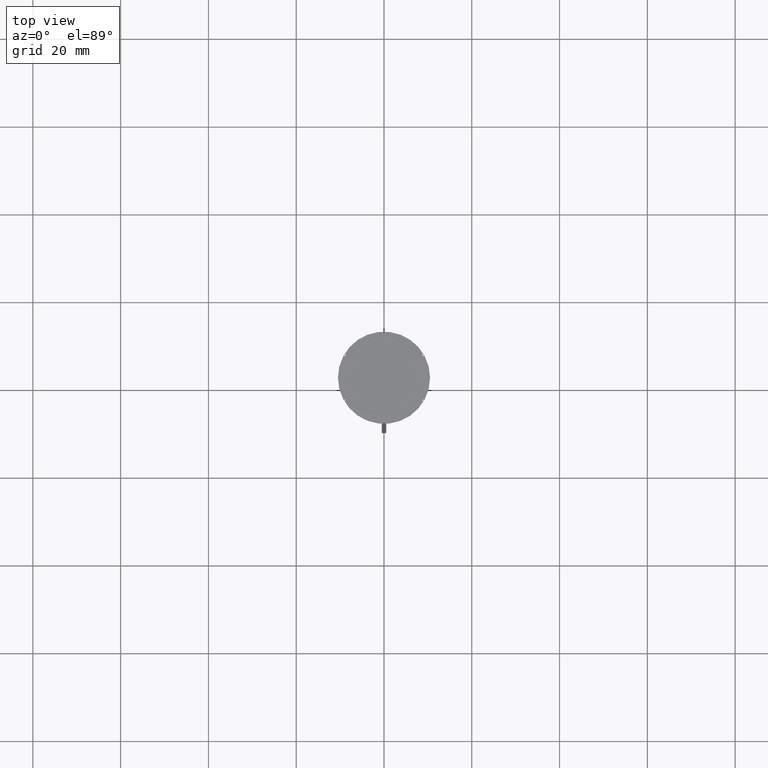
[diagram: clean part render]
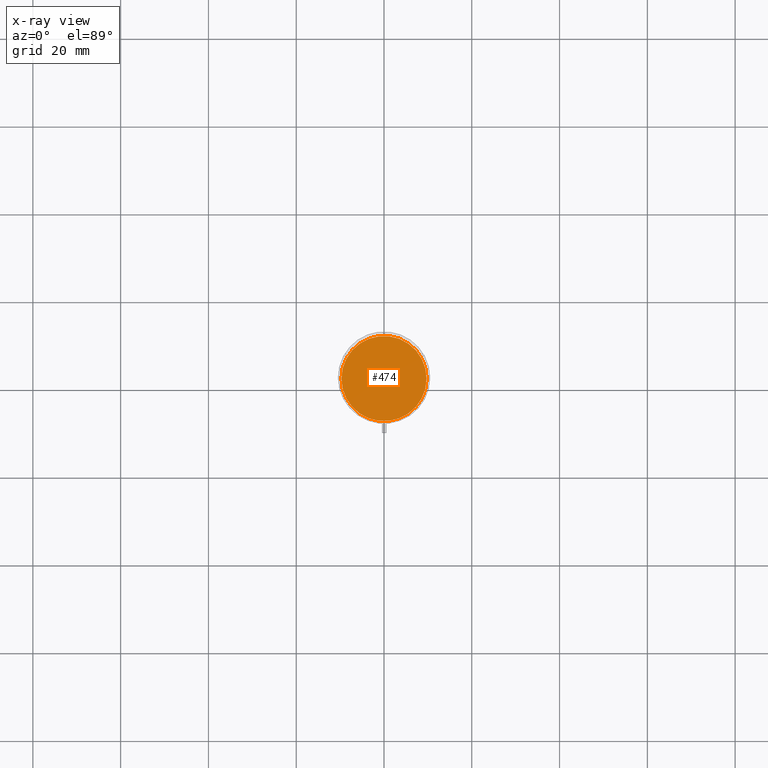
[diagram: x-ray — body ghosted, one internal face saturated and labeled with its STEP entity id]
A machine part, top view, then the same camera in x-ray: the body is ghosted and one INTERNAL B-rep face — a face not visible from any outside direction — is saturated and labeled: STEP entity #474.
In plain terms, the highlighted planar face has unit normal (0, 0, -1).
Its self-contained STEP definition (entity closure, byte-faithful):
#58 = AXIS2_PLACEMENT_3D ( 'NONE', #780, #789, #1176 ) ;
#93 = ORIENTED_EDGE ( 'NONE', *, *, #416, .T. ) ;
#142 = VERTEX_POINT ( 'NONE', #397 ) ;
#183 = EDGE_LOOP ( 'NONE', ( #873, #93 ) ) ;
#341 = DIRECTION ( 'NONE',  ( -1.000000000000000000, 0.000000000000000000, 0.000000000000000000 ) ) ;
#344 = DIRECTION ( 'NONE',  ( -0.000000000000000000, -0.000000000000000000, 1.000000000000000000 ) ) ;
#397 = CARTESIAN_POINT ( 'NONE',  ( 9.700000000000002842, 1.206277097160143024E-15, -12.00000000000000000 ) ) ;
#416 = EDGE_CURVE ( 'NONE', #142, #1361, #769, .T. ) ;
#474 = ADVANCED_FACE ( 'NONE', ( #1206 ), #2007, .F. ) ;
#769 = CIRCLE ( 'NONE', #1179, 9.700000000000002842 ) ;
#780 = CARTESIAN_POINT ( 'NONE',  ( 0.000000000000000000, 0.000000000000000000, -12.00000000000000000 ) ) ;
#789 = DIRECTION ( 'NONE',  ( 0.000000000000000000, 0.000000000000000000, -1.000000000000000000 ) ) ;
#873 = ORIENTED_EDGE ( 'NONE', *, *, #2024, .T. ) ;
#944 = CARTESIAN_POINT ( 'NONE',  ( 0.000000000000000000, 0.000000000000000000, -12.00000000000000000 ) ) ;
#1176 = DIRECTION ( 'NONE',  ( -1.000000000000000000, 0.000000000000000000, -0.000000000000000000 ) ) ;
#1179 = AXIS2_PLACEMENT_3D ( 'NONE', #2130, #344, #1726 ) ;
#1206 = FACE_OUTER_BOUND ( 'NONE', #183, .T. ) ;
#1238 = CARTESIAN_POINT ( 'NONE',  ( -9.700000000000002842, 0.000000000000000000, -12.00000000000000000 ) ) ;
#1361 = VERTEX_POINT ( 'NONE', #1238 ) ;
#1641 = CIRCLE ( 'NONE', #2277, 9.700000000000002842 ) ;
#1726 = DIRECTION ( 'NONE',  ( -1.000000000000000000, 0.000000000000000000, 0.000000000000000000 ) ) ;
#2007 = PLANE ( 'NONE',  #58 ) ;
#2024 = EDGE_CURVE ( 'NONE', #1361, #142, #1641, .T. ) ;
#2130 = CARTESIAN_POINT ( 'NONE',  ( 0.000000000000000000, 0.000000000000000000, -12.00000000000000000 ) ) ;
#2277 = AXIS2_PLACEMENT_3D ( 'NONE', #944, #2347, #341 ) ;
#2347 = DIRECTION ( 'NONE',  ( -0.000000000000000000, -0.000000000000000000, 1.000000000000000000 ) ) ;